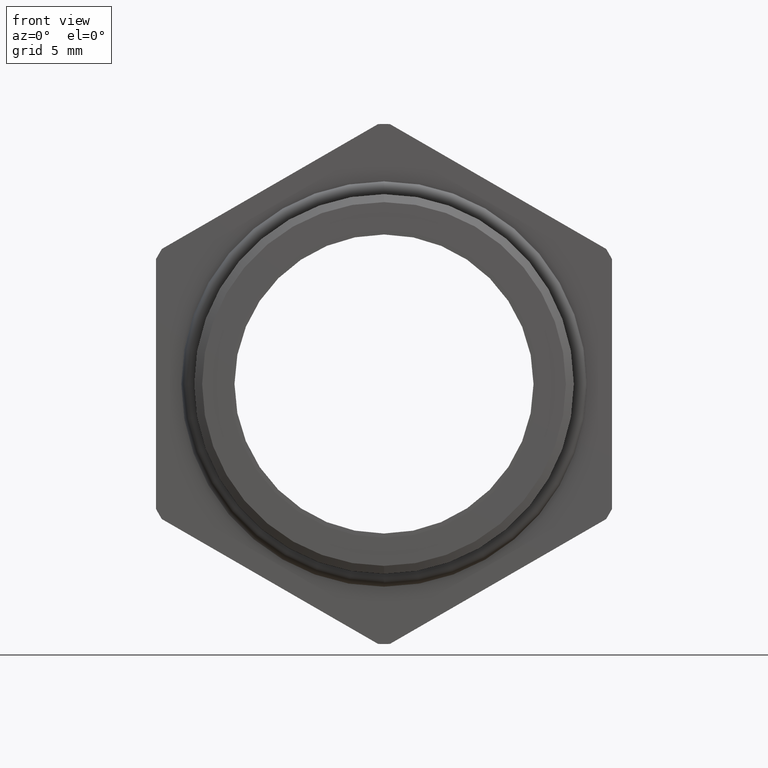
[diagram: clean part render]
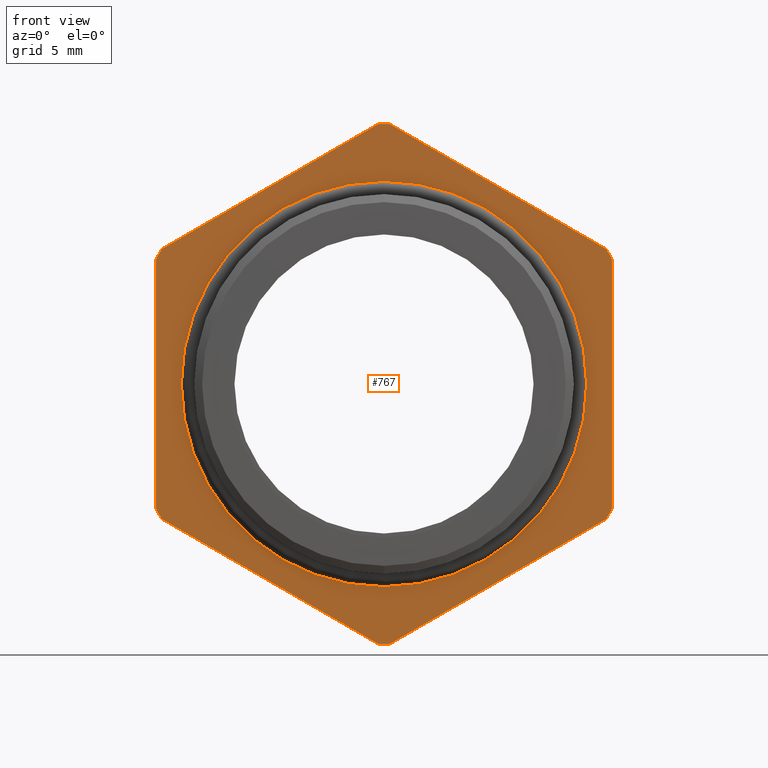
[diagram: same view with one face highlighted and labeled with its STEP entity id]
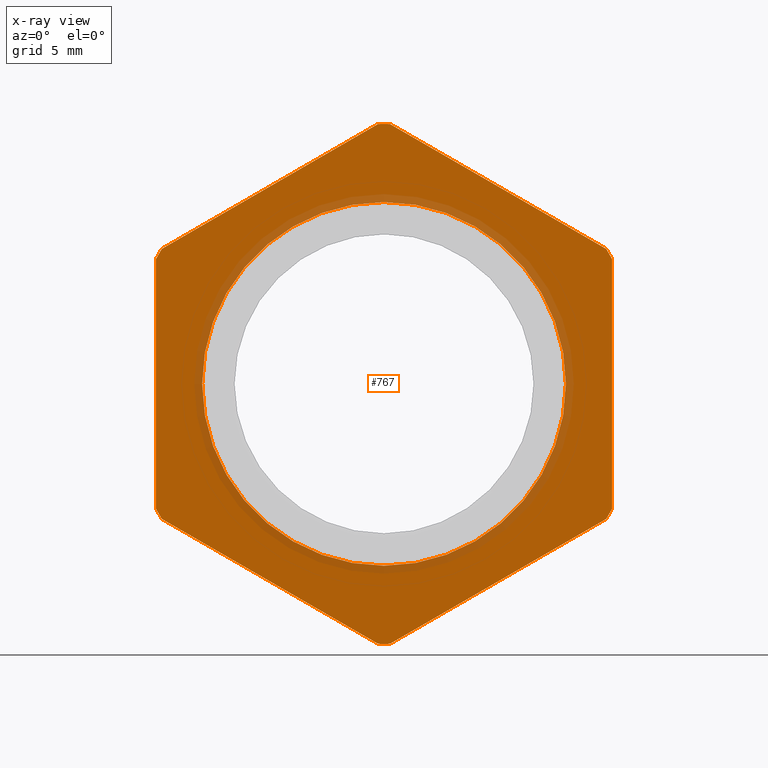
[diagram: x-ray of the same camera — body ghosted, the highlighted face saturated]
A machine part, front view. The second image highlights one B-rep face of the part: STEP entity #767.
The next image is the same camera in x-ray: the body ghosted, the highlighted face saturated — about 12% of this face is hidden behind the body in this view.
In plain terms, the highlighted planar face has unit normal (0, -1, -0).
Its self-contained STEP definition (entity closure, byte-faithful):
#67 = VERTEX_POINT ( 'NONE', #2572 ) ;
#73 = VERTEX_POINT ( 'NONE', #2564 ) ;
#79 = EDGE_CURVE ( 'NONE', #96, #82, #2613, .T. ) ;
#82 = VERTEX_POINT ( 'NONE', #2599 ) ;
#91 = EDGE_CURVE ( 'NONE', #73, #67, #2652, .T. ) ;
#96 = VERTEX_POINT ( 'NONE', #2641 ) ;
#98 = VERTEX_POINT ( 'NONE', #2639 ) ;
#106 = EDGE_CURVE ( 'NONE', #2427, #109, #2685, .T. ) ;
#109 = VERTEX_POINT ( 'NONE', #2675 ) ;
#113 = VERTEX_POINT ( 'NONE', #2670 ) ;
#122 = VERTEX_POINT ( 'NONE', #2658 ) ;
#125 = EDGE_CURVE ( 'NONE', #98, #139, #2714, .T. ) ;
#130 = EDGE_CURVE ( 'NONE', #122, #136, #2697, .T. ) ;
#136 = VERTEX_POINT ( 'NONE', #2688 ) ;
#139 = VERTEX_POINT ( 'NONE', #2687 ) ;
#141 = VERTEX_POINT ( 'NONE', #2686 ) ;
#143 = VERTEX_POINT ( 'NONE', #2748 ) ;
#151 = EDGE_CURVE ( 'NONE', #143, #141, #2733, .T. ) ;
#403 = EDGE_CURVE ( 'NONE', #136, #98, #3232, .T. ) ;
#410 = EDGE_CURVE ( 'NONE', #67, #113, #3215, .T. ) ;
#420 = EDGE_CURVE ( 'NONE', #425, #122, #3299, .T. ) ;
#425 = VERTEX_POINT ( 'NONE', #3280 ) ;
#427 = EDGE_CURVE ( 'NONE', #113, #425, #3279, .T. ) ;
#440 = EDGE_CURVE ( 'NONE', #82, #73, #3314, .T. ) ;
#454 = EDGE_CURVE ( 'NONE', #109, #96, #3345, .T. ) ;
#469 = EDGE_CURVE ( 'NONE', #139, #2456, #3365, .T. ) ;
#747 = ORIENTED_EDGE ( 'NONE', *, *, #782, .F. ) ;
#748 = ORIENTED_EDGE ( 'NONE', *, *, #79, .T. ) ;
#749 = ORIENTED_EDGE ( 'NONE', *, *, #440, .T. ) ;
#750 = ORIENTED_EDGE ( 'NONE', *, *, #91, .T. ) ;
#751 = ORIENTED_EDGE ( 'NONE', *, *, #410, .T. ) ;
#752 = ORIENTED_EDGE ( 'NONE', *, *, #427, .T. ) ;
#753 = ORIENTED_EDGE ( 'NONE', *, *, #420, .T. ) ;
#754 = ORIENTED_EDGE ( 'NONE', *, *, #130, .T. ) ;
#755 = ORIENTED_EDGE ( 'NONE', *, *, #403, .T. ) ;
#756 = ORIENTED_EDGE ( 'NONE', *, *, #125, .T. ) ;
#767 = ADVANCED_FACE ( 'NONE', ( #3944, #3943 ), #3942, .T. ) ;
#768 = EDGE_LOOP ( 'NONE', ( #769, #747 ) ) ;
#769 = ORIENTED_EDGE ( 'NONE', *, *, #151, .F. ) ;
#770 = EDGE_LOOP ( 'NONE', ( #748, #749, #750, #751, #752, #753, #754, #755, #756, #817, #818, #819, #820 ) ) ;
#782 = EDGE_CURVE ( 'NONE', #141, #143, #3987, .T. ) ;
#817 = ORIENTED_EDGE ( 'NONE', *, *, #469, .T. ) ;
#818 = ORIENTED_EDGE ( 'NONE', *, *, #2446, .T. ) ;
#819 = ORIENTED_EDGE ( 'NONE', *, *, #106, .T. ) ;
#820 = ORIENTED_EDGE ( 'NONE', *, *, #454, .T. ) ;
#2427 = VERTEX_POINT ( 'NONE', #6755 ) ;
#2446 = EDGE_CURVE ( 'NONE', #2456, #2427, #6785, .T. ) ;
#2456 = VERTEX_POINT ( 'NONE', #6832 ) ;
#2564 = CARTESIAN_POINT ( 'NONE',  ( 0.3949999999999999100, 0.2675548905829480100, 0.2162061284977834200 ) ) ;
#2572 = CARTESIAN_POINT ( 'NONE',  ( 0.3847399997329628600, 0.2675548905829480100, 0.2339769702459617900 ) ) ;
#2599 = CARTESIAN_POINT ( 'NONE',  ( 0.3950000000000000200, 0.2675548905829480100, -0.2162061284977832000 ) ) ;
#2605 = DIRECTION ( 'NONE',  ( 0.0000000000000000000, 0.0000000000000000000, -1.000000000000000000 ) ) ;
#2606 = DIRECTION ( 'NONE',  ( -0.0000000000000000000, -1.000000000000000000, -0.0000000000000000000 ) ) ;
#2607 = CARTESIAN_POINT ( 'NONE',  ( 0.0000000000000000000, 0.2675548905829480100, 0.0000000000000000000 ) ) ;
#2608 = AXIS2_PLACEMENT_3D ( 'NONE', #2607, #2606, #2605 ) ;
#2613 = CIRCLE ( 'NONE', #2608, 0.4502999999999999800 ) ;
#2639 = CARTESIAN_POINT ( 'NONE',  ( -0.3949999999999999600, 0.2675548905829480100, -0.2162061284977833100 ) ) ;
#2641 = CARTESIAN_POINT ( 'NONE',  ( 0.3847399997329628000, 0.2675548905829480100, -0.2339769702459620100 ) ) ;
#2648 = DIRECTION ( 'NONE',  ( 0.0000000000000000000, 0.0000000000000000000, -1.000000000000000000 ) ) ;
#2649 = DIRECTION ( 'NONE',  ( -0.0000000000000000000, -1.000000000000000000, -0.0000000000000000000 ) ) ;
#2650 = CARTESIAN_POINT ( 'NONE',  ( 0.0000000000000000000, 0.2675548905829480100, 0.0000000000000000000 ) ) ;
#2651 = AXIS2_PLACEMENT_3D ( 'NONE', #2650, #2649, #2648 ) ;
#2652 = CIRCLE ( 'NONE', #2651, 0.4502999999999999800 ) ;
#2658 = CARTESIAN_POINT ( 'NONE',  ( -0.3847399997329629100, 0.2675548905829480100, 0.2339769702459617000 ) ) ;
#2670 = CARTESIAN_POINT ( 'NONE',  ( 0.01026000026703743400, 0.2675548905829480100, 0.4501830987437449600 ) ) ;
#2675 = CARTESIAN_POINT ( 'NONE',  ( 0.01026000026703720500, 0.2675548905829480100, -0.4501830987437447900 ) ) ;
#2681 = DIRECTION ( 'NONE',  ( 0.0000000000000000000, 0.0000000000000000000, -1.000000000000000000 ) ) ;
#2682 = DIRECTION ( 'NONE',  ( -0.0000000000000000000, -1.000000000000000000, -0.0000000000000000000 ) ) ;
#2683 = CARTESIAN_POINT ( 'NONE',  ( 0.0000000000000000000, 0.2675548905829480100, 0.0000000000000000000 ) ) ;
#2684 = AXIS2_PLACEMENT_3D ( 'NONE', #2683, #2682, #2681 ) ;
#2685 = CIRCLE ( 'NONE', #2684, 0.4502999999999999800 ) ;
#2686 = CARTESIAN_POINT ( 'NONE',  ( 3.857637417314162700E-017, 0.2675548905829480100, 0.3150000000000000000 ) ) ;
#2687 = CARTESIAN_POINT ( 'NONE',  ( -0.3847399997329630200, 0.2675548905829480100, -0.2339769702459614800 ) ) ;
#2688 = CARTESIAN_POINT ( 'NONE',  ( -0.3949999999999999600, 0.2675548905829480100, 0.2162061284977833100 ) ) ;
#2693 = DIRECTION ( 'NONE',  ( 0.0000000000000000000, 0.0000000000000000000, -1.000000000000000000 ) ) ;
#2694 = DIRECTION ( 'NONE',  ( -0.0000000000000000000, -1.000000000000000000, -0.0000000000000000000 ) ) ;
#2695 = CARTESIAN_POINT ( 'NONE',  ( 0.0000000000000000000, 0.2675548905829480100, 0.0000000000000000000 ) ) ;
#2696 = AXIS2_PLACEMENT_3D ( 'NONE', #2695, #2694, #2693 ) ;
#2697 = CIRCLE ( 'NONE', #2696, 0.4502999999999999800 ) ;
#2710 = DIRECTION ( 'NONE',  ( 0.0000000000000000000, 0.0000000000000000000, -1.000000000000000000 ) ) ;
#2711 = DIRECTION ( 'NONE',  ( -0.0000000000000000000, -1.000000000000000000, -0.0000000000000000000 ) ) ;
#2712 = CARTESIAN_POINT ( 'NONE',  ( 0.0000000000000000000, 0.2675548905829480100, 0.0000000000000000000 ) ) ;
#2713 = AXIS2_PLACEMENT_3D ( 'NONE', #2712, #2711, #2710 ) ;
#2714 = CIRCLE ( 'NONE', #2713, 0.4502999999999999800 ) ;
#2729 = DIRECTION ( 'NONE',  ( 0.0000000000000000000, 0.0000000000000000000, -1.000000000000000000 ) ) ;
#2730 = DIRECTION ( 'NONE',  ( -0.0000000000000000000, -1.000000000000000000, -0.0000000000000000000 ) ) ;
#2731 = CARTESIAN_POINT ( 'NONE',  ( 0.0000000000000000000, 0.2675548905829480100, 0.0000000000000000000 ) ) ;
#2732 = AXIS2_PLACEMENT_3D ( 'NONE', #2731, #2730, #2729 ) ;
#2733 = CIRCLE ( 'NONE', #2732, 0.3150000000000000000 ) ;
#2748 = CARTESIAN_POINT ( 'NONE',  ( 0.0000000000000000000, 0.2675548905829480100, -0.3150000000000000000 ) ) ;
#3215 = LINE ( 'NONE', #3266, #3259 ) ;
#3223 = DIRECTION ( 'NONE',  ( 0.0000000000000000000, 0.0000000000000000000, -1.000000000000000000 ) ) ;
#3224 = VECTOR ( 'NONE', #3223, 39.37007874015748100 ) ;
#3231 = CARTESIAN_POINT ( 'NONE',  ( -0.3949999999999999600, 0.2675548905829480100, 0.0000000000000000000 ) ) ;
#3232 = LINE ( 'NONE', #3231, #3224 ) ;
#3258 = DIRECTION ( 'NONE',  ( -0.8660254037844386000, 0.0000000000000000000, 0.5000000000000002200 ) ) ;
#3259 = VECTOR ( 'NONE', #3258, 39.37007874015747400 ) ;
#3266 = CARTESIAN_POINT ( 'NONE',  ( 0.4337500000000000200, 0.2675548905829480100, 0.2056810333988042200 ) ) ;
#3275 = DIRECTION ( 'NONE',  ( 0.0000000000000000000, 0.0000000000000000000, -1.000000000000000000 ) ) ;
#3276 = DIRECTION ( 'NONE',  ( -0.0000000000000000000, -1.000000000000000000, -0.0000000000000000000 ) ) ;
#3277 = CARTESIAN_POINT ( 'NONE',  ( 0.0000000000000000000, 0.2675548905829480100, 0.0000000000000000000 ) ) ;
#3278 = AXIS2_PLACEMENT_3D ( 'NONE', #3277, #3276, #3275 ) ;
#3279 = CIRCLE ( 'NONE', #3278, 0.4502999999999999800 ) ;
#3280 = CARTESIAN_POINT ( 'NONE',  ( -0.01026000026703707000, 0.2675548905829480100, 0.4501830987437449600 ) ) ;
#3292 = DIRECTION ( 'NONE',  ( -0.8660254037844388200, 0.0000000000000000000, -0.4999999999999998300 ) ) ;
#3293 = VECTOR ( 'NONE', #3292, 39.37007874015748100 ) ;
#3294 = CARTESIAN_POINT ( 'NONE',  ( 0.03875000000000009700, 0.2675548905829480100, 0.4784790355909023800 ) ) ;
#3299 = LINE ( 'NONE', #3294, #3293 ) ;
#3311 = DIRECTION ( 'NONE',  ( -2.994746533912406700E-016, 0.0000000000000000000, 1.000000000000000000 ) ) ;
#3312 = VECTOR ( 'NONE', #3311, 39.37007874015748100 ) ;
#3313 = CARTESIAN_POINT ( 'NONE',  ( 0.3949999999999999600, 0.2675548905829480100, 2.395797227129924600E-017 ) ) ;
#3314 = LINE ( 'NONE', #3313, #3312 ) ;
#3336 = DIRECTION ( 'NONE',  ( 0.8660254037844388200, 0.0000000000000000000, 0.4999999999999998300 ) ) ;
#3337 = VECTOR ( 'NONE', #3336, 39.37007874015748100 ) ;
#3344 = CARTESIAN_POINT ( 'NONE',  ( 0.4337499999999999700, 0.2675548905829480100, -0.2056810333988043400 ) ) ;
#3345 = LINE ( 'NONE', #3344, #3337 ) ;
#3364 = CARTESIAN_POINT ( 'NONE',  ( 0.03874999999999989600, 0.2675548905829480100, -0.4784790355909022700 ) ) ;
#3365 = LINE ( 'NONE', #3364, #3410 ) ;
#3409 = DIRECTION ( 'NONE',  ( 0.8660254037844386000, 0.0000000000000000000, -0.5000000000000002200 ) ) ;
#3410 = VECTOR ( 'NONE', #3409, 39.37007874015747400 ) ;
#3938 = DIRECTION ( 'NONE',  ( 0.0000000000000000000, 0.0000000000000000000, -1.000000000000000000 ) ) ;
#3939 = DIRECTION ( 'NONE',  ( 0.0000000000000000000, -1.000000000000000000, -0.0000000000000000000 ) ) ;
#3940 = AXIS2_PLACEMENT_3D ( 'NONE', #3941, #3939, #3938 ) ;
#3941 = CARTESIAN_POINT ( 'NONE',  ( 0.3150000000000000000, 0.2675548905829480100, 0.0000000000000000000 ) ) ;
#3942 = PLANE ( 'NONE',  #3940 ) ;
#3943 = FACE_OUTER_BOUND ( 'NONE', #770, .T. ) ;
#3944 = FACE_BOUND ( 'NONE', #768, .T. ) ;
#3979 = DIRECTION ( 'NONE',  ( 0.0000000000000000000, 0.0000000000000000000, -1.000000000000000000 ) ) ;
#3980 = DIRECTION ( 'NONE',  ( -0.0000000000000000000, -1.000000000000000000, -0.0000000000000000000 ) ) ;
#3981 = CARTESIAN_POINT ( 'NONE',  ( 0.0000000000000000000, 0.2675548905829480100, 0.0000000000000000000 ) ) ;
#3982 = AXIS2_PLACEMENT_3D ( 'NONE', #3981, #3980, #3979 ) ;
#3987 = CIRCLE ( 'NONE', #3982, 0.3150000000000000000 ) ;
#6755 = CARTESIAN_POINT ( 'NONE',  ( 0.0000000000000000000, 0.2675548905829480100, -0.4502999999999999800 ) ) ;
#6781 = DIRECTION ( 'NONE',  ( 0.0000000000000000000, 0.0000000000000000000, -1.000000000000000000 ) ) ;
#6782 = DIRECTION ( 'NONE',  ( -0.0000000000000000000, -1.000000000000000000, -0.0000000000000000000 ) ) ;
#6783 = CARTESIAN_POINT ( 'NONE',  ( 0.0000000000000000000, 0.2675548905829480100, 0.0000000000000000000 ) ) ;
#6784 = AXIS2_PLACEMENT_3D ( 'NONE', #6783, #6782, #6781 ) ;
#6785 = CIRCLE ( 'NONE', #6784, 0.4502999999999999800 ) ;
#6832 = CARTESIAN_POINT ( 'NONE',  ( -0.01026000026703716000, 0.2675548905829480100, -0.4501830987437449600 ) ) ;